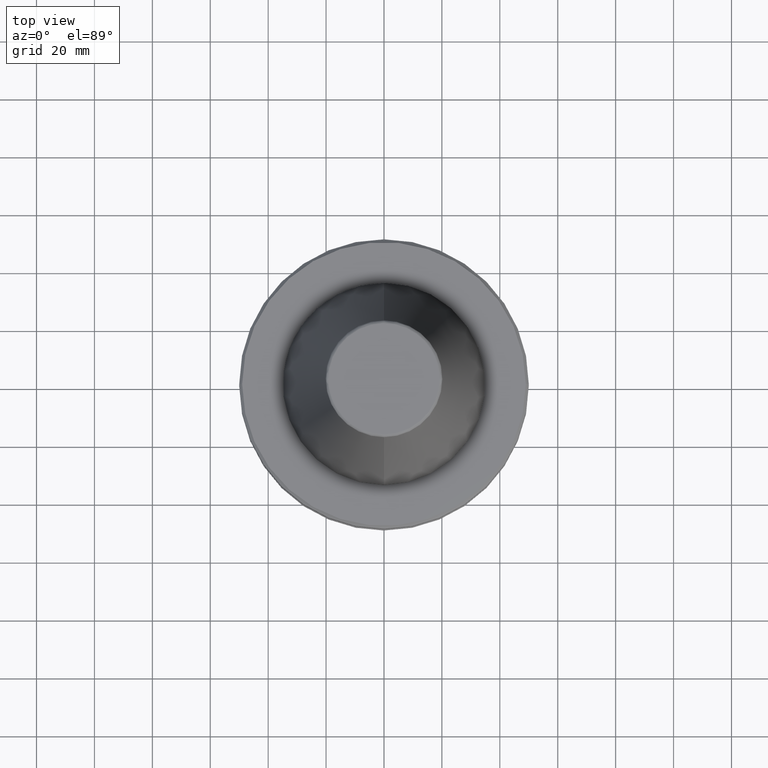
[diagram: clean part render]
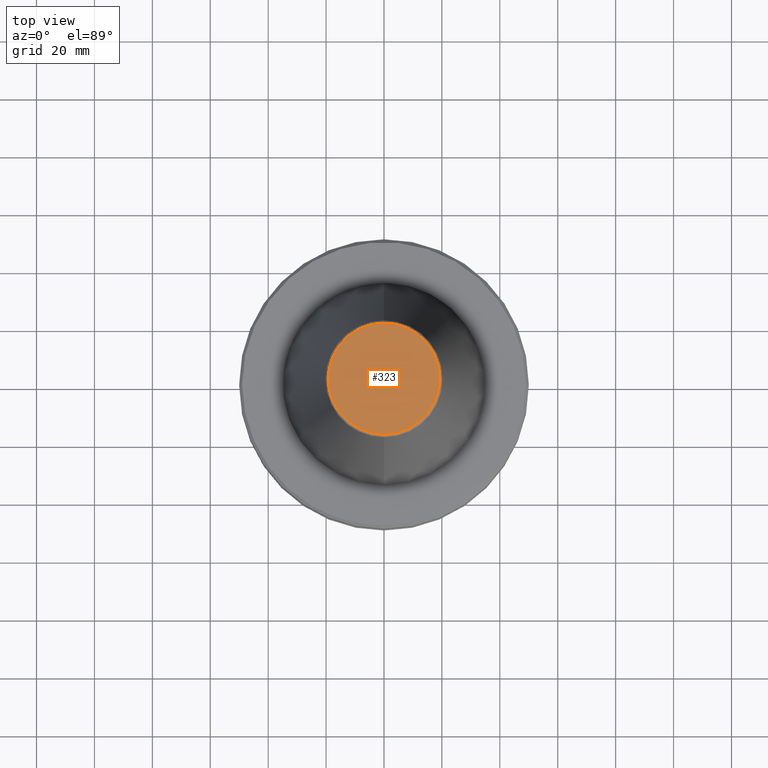
[diagram: same view with one face highlighted and labeled with its STEP entity id]
A machine part, top view. The second image highlights one B-rep face of the part: STEP entity #323.
In plain terms, the highlighted planar face has unit normal (0, 0, -1).
Its self-contained STEP definition (entity closure, byte-faithful):
#85 = FACE_OUTER_BOUND ( 'NONE', #1237, .T. ) ;
#323 = ADVANCED_FACE ( 'NONE', ( #85 ), #1487, .F. ) ;
#350 = CARTESIAN_POINT ( 'NONE',  ( -19.21428326074989800, 0.0000000000000000000, 101.7999999998288700 ) ) ;
#506 = ORIENTED_EDGE ( 'NONE', *, *, #680, .F. ) ;
#579 = CARTESIAN_POINT ( 'NONE',  ( 19.21428326074989800, 0.0000000000000000000, 101.7999999998288700 ) ) ;
#613 = EDGE_CURVE ( 'NONE', #731, #1066, #695, .T. ) ;
#633 = CARTESIAN_POINT ( 'NONE',  ( 19.21428326074989800, 0.0000000000000000000, 101.7999999998288700 ) ) ;
#634 = CARTESIAN_POINT ( 'NONE',  ( 19.21428326062251600, 38.42856652208892900, 101.7999999997148300 ) ) ;
#636 = CARTESIAN_POINT ( 'NONE',  ( -19.21428326062251600, 38.42856652208892900, 101.7999999997148300 ) ) ;
#641 = CARTESIAN_POINT ( 'NONE',  ( -19.21428326074989800, 0.0000000000000000000, 101.7999999998288700 ) ) ;
#655 = CARTESIAN_POINT ( 'NONE',  ( -19.21428326074989800, 0.0000000000000000000, 101.7999999998288700 ) ) ;
#656 = CARTESIAN_POINT ( 'NONE',  ( -19.21428326062251600, -38.42856652208892900, 101.7999999997148400 ) ) ;
#658 = CARTESIAN_POINT ( 'NONE',  ( 19.21428326062251600, -38.42856652208892900, 101.7999999997148400 ) ) ;
#659 = CARTESIAN_POINT ( 'NONE',  ( 19.21428326074989800, 0.0000000000000000000, 101.7999999998288700 ) ) ;
#680 = EDGE_CURVE ( 'NONE', #1066, #731, #969, .T. ) ;
#695 =( BOUNDED_CURVE ( )  B_SPLINE_CURVE ( 3, ( #659, #658, #656, #655 ),
 .UNSPECIFIED., .F., .F. ) 
 B_SPLINE_CURVE_WITH_KNOTS ( ( 4, 4 ),
 ( 0.0000000000000000000, 1.000000000000000000 ),
 .UNSPECIFIED. ) 
 CURVE ( )  GEOMETRIC_REPRESENTATION_ITEM ( )  RATIONAL_B_SPLINE_CURVE ( ( 0.9606698271414653200, 0.3202232757138215900, 0.3202232757138215900, 0.9606698271414653200 ) ) 
 REPRESENTATION_ITEM ( '' )  );
#731 = VERTEX_POINT ( 'NONE', #579 ) ;
#882 = DIRECTION ( 'NONE',  ( -1.000000000000000000, 0.0000000000000000000, -0.0000000000000000000 ) ) ;
#969 =( BOUNDED_CURVE ( )  B_SPLINE_CURVE ( 3, ( #641, #636, #634, #633 ),
 .UNSPECIFIED., .F., .F. ) 
 B_SPLINE_CURVE_WITH_KNOTS ( ( 4, 4 ),
 ( 0.0000000000000000000, 1.000000000000000000 ),
 .UNSPECIFIED. ) 
 CURVE ( )  GEOMETRIC_REPRESENTATION_ITEM ( )  RATIONAL_B_SPLINE_CURVE ( ( 0.9606698271414639800, 0.3202232757138212000, 0.3202232757138212000, 0.9606698271414639800 ) ) 
 REPRESENTATION_ITEM ( '' )  );
#973 = AXIS2_PLACEMENT_3D ( 'NONE', #1121, #1166, #882 ) ;
#1066 = VERTEX_POINT ( 'NONE', #350 ) ;
#1121 = CARTESIAN_POINT ( 'NONE',  ( 19.44485466400000500, -19.44485466400000500, 101.8000000000000000 ) ) ;
#1166 = DIRECTION ( 'NONE',  ( 0.0000000000000000000, 0.0000000000000000000, -1.000000000000000000 ) ) ;
#1237 = EDGE_LOOP ( 'NONE', ( #506, #1315 ) ) ;
#1315 = ORIENTED_EDGE ( 'NONE', *, *, #613, .F. ) ;
#1487 = PLANE ( 'NONE',  #973 ) ;